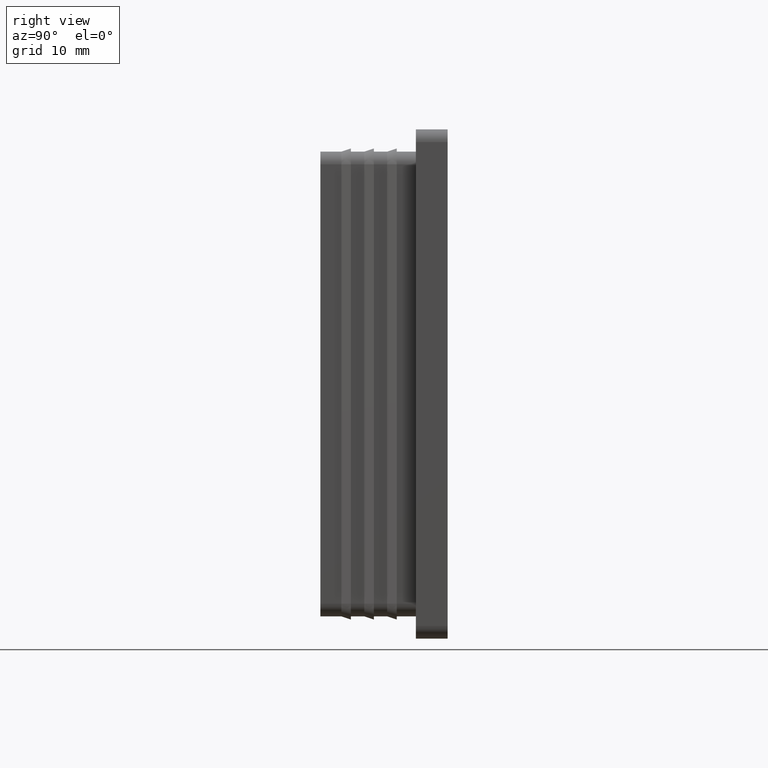
[diagram: clean part render]
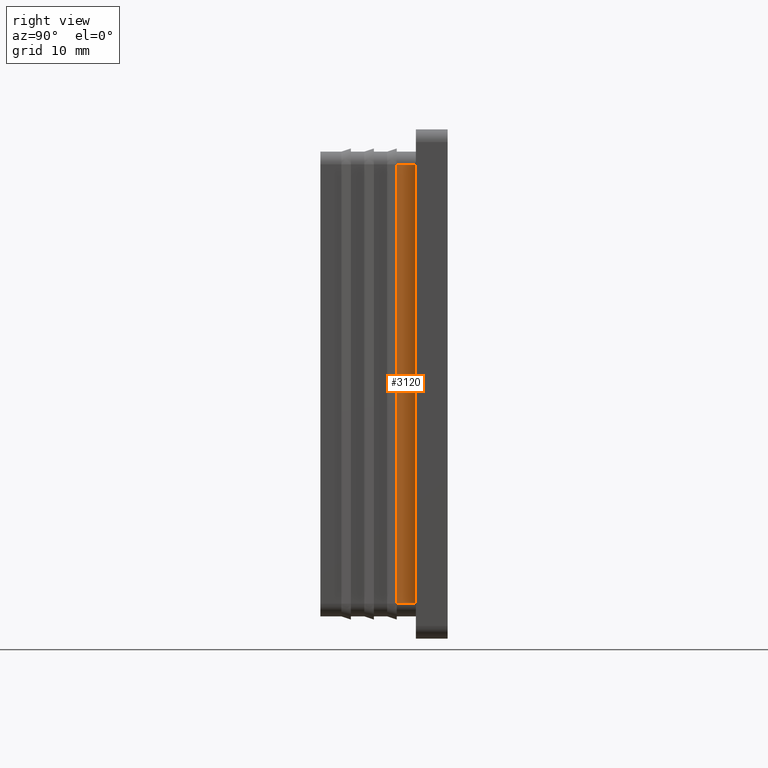
[diagram: same view with one face highlighted and labeled with its STEP entity id]
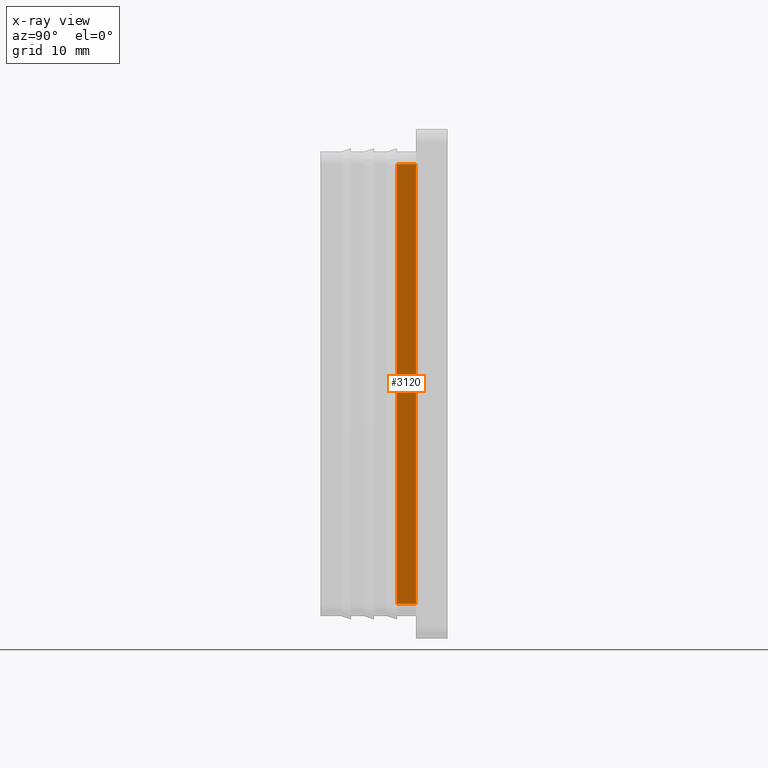
[diagram: x-ray of the same camera — body ghosted, the highlighted face saturated]
A machine part, right view. The second image highlights one B-rep face of the part: STEP entity #3120.
The next image is the same camera in x-ray: the body ghosted, the highlighted face saturated — about 0% of this face is hidden behind the body in this view.
In plain terms, the highlighted planar face has unit normal (-1, 0, -0).
Its self-contained STEP definition (entity closure, byte-faithful):
#2182 = LINE ( 'NONE', #4579, #9205 ) ;
#2352 = ORIENTED_EDGE ( 'NONE', *, *, #11460, .T. ) ;
#2601 = CARTESIAN_POINT ( 'NONE',  ( 36.49999999999999300, -2.999999999999945400, -34.49999999999998600 ) ) ;
#2862 = EDGE_LOOP ( 'NONE', ( #16117, #16742, #2352, #5451 ) ) ;
#3120 = ADVANCED_FACE ( 'NONE', ( #15260 ), #9274, .F. ) ;
#3435 = EDGE_CURVE ( 'NONE', #13430, #5748, #16666, .T. ) ;
#4579 = CARTESIAN_POINT ( 'NONE',  ( 36.49999999999997200, -3.000000000000004400, -34.49999999999997200 ) ) ;
#4694 = CARTESIAN_POINT ( 'NONE',  ( 36.49999999999999300, -3.000000000000004400, 34.50000000000000000 ) ) ;
#5042 = DIRECTION ( 'NONE',  ( -0.0000000000000000000, -0.0000000000000000000, 1.000000000000000000 ) ) ;
#5451 = ORIENTED_EDGE ( 'NONE', *, *, #3435, .T. ) ;
#5748 = VERTEX_POINT ( 'NONE', #12052 ) ;
#6199 = VECTOR ( 'NONE', #5042, 1000.000000000000000 ) ;
#6314 = CARTESIAN_POINT ( 'NONE',  ( 36.49999999999999300, -15.00000000000000000, 34.50000000000000000 ) ) ;
#6380 = VERTEX_POINT ( 'NONE', #2601 ) ;
#6680 = DIRECTION ( 'NONE',  ( -1.000000000000000000, 0.0000000000000000000, -0.0000000000000000000 ) ) ;
#7644 = LINE ( 'NONE', #8344, #8059 ) ;
#7651 = DIRECTION ( 'NONE',  ( -0.0000000000000000000, -1.000000000000000000, -0.0000000000000000000 ) ) ;
#7703 = VECTOR ( 'NONE', #7651, 1000.000000000000000 ) ;
#8059 = VECTOR ( 'NONE', #13483, 1000.000000000000000 ) ;
#8112 = LINE ( 'NONE', #6314, #7703 ) ;
#8344 = CARTESIAN_POINT ( 'NONE',  ( 36.49999999999999300, -15.00000000000000000, -34.49999999999998600 ) ) ;
#8615 = EDGE_CURVE ( 'NONE', #5748, #9916, #8112, .T. ) ;
#9205 = VECTOR ( 'NONE', #13782, 1000.000000000000000 ) ;
#9274 = PLANE ( 'NONE',  #12955 ) ;
#9916 = VERTEX_POINT ( 'NONE', #4694 ) ;
#11460 = EDGE_CURVE ( 'NONE', #6380, #13430, #7644, .T. ) ;
#11650 = CARTESIAN_POINT ( 'NONE',  ( 36.49999999999999300, -0.0000000000000000000, 36.50000000000000700 ) ) ;
#11868 = CARTESIAN_POINT ( 'NONE',  ( 36.49999999999999300, 0.0000000000000000000, -34.49999999999998600 ) ) ;
#12052 = CARTESIAN_POINT ( 'NONE',  ( 36.49999999999999300, 0.0000000000000000000, 34.50000000000000000 ) ) ;
#12209 = EDGE_CURVE ( 'NONE', #6380, #9916, #2182, .T. ) ;
#12955 = AXIS2_PLACEMENT_3D ( 'NONE', #14556, #6680, #15851 ) ;
#13430 = VERTEX_POINT ( 'NONE', #11868 ) ;
#13483 = DIRECTION ( 'NONE',  ( 0.0000000000000000000, 1.000000000000000000, 0.0000000000000000000 ) ) ;
#13782 = DIRECTION ( 'NONE',  ( 0.0000000000000000000, 0.0000000000000000000, 1.000000000000000000 ) ) ;
#14556 = CARTESIAN_POINT ( 'NONE',  ( 36.49999999999999300, -15.00000000000000000, 36.50000000000000700 ) ) ;
#15260 = FACE_OUTER_BOUND ( 'NONE', #2862, .T. ) ;
#15851 = DIRECTION ( 'NONE',  ( -0.0000000000000000000, 0.0000000000000000000, 1.000000000000000000 ) ) ;
#16117 = ORIENTED_EDGE ( 'NONE', *, *, #8615, .T. ) ;
#16666 = LINE ( 'NONE', #11650, #6199 ) ;
#16742 = ORIENTED_EDGE ( 'NONE', *, *, #12209, .F. ) ;